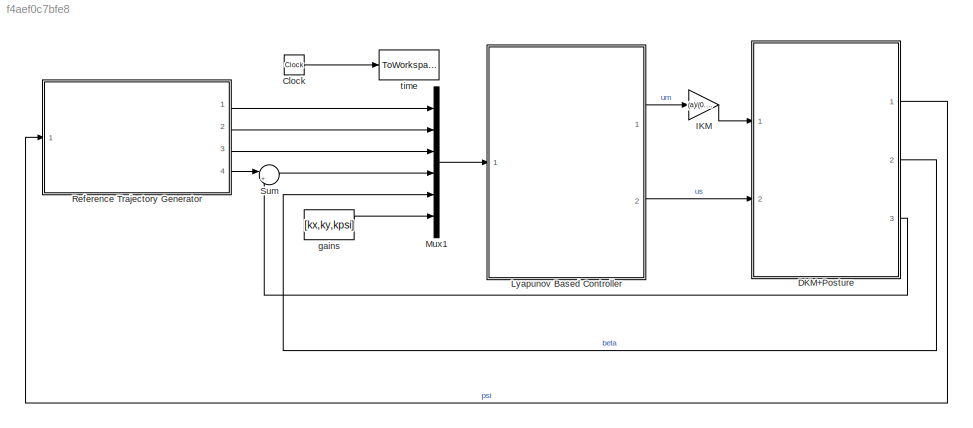
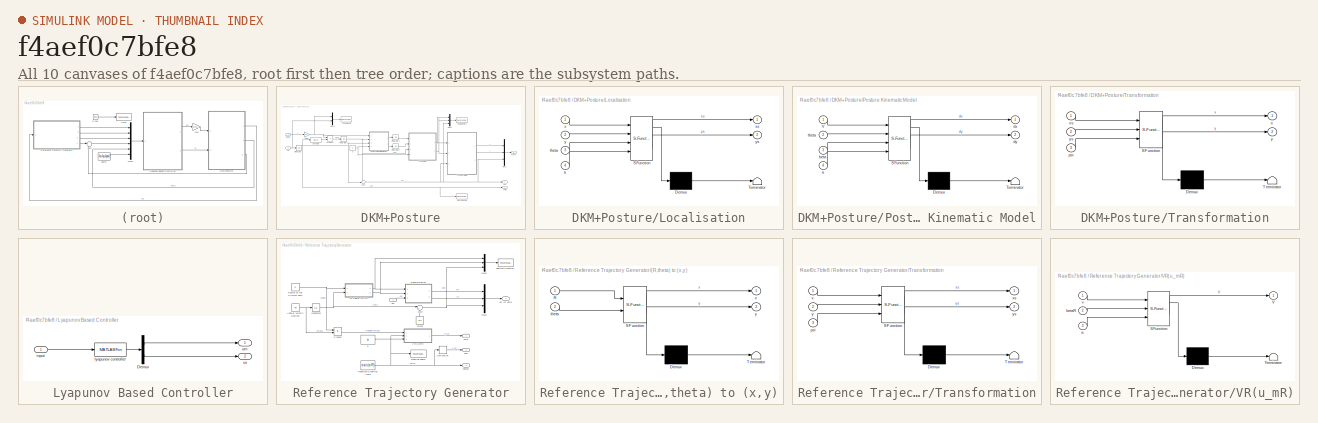
[diagram: thumbnail index - all 10 canvases of the model, root first then tree order]
MODEL slx_f4aef0c7bfe8
KIND model
CONFIG AbsTol = auto
CONFIG FixedStep = 0.001
CONFIG MaxStep = auto
CONFIG MinStep = auto
CONFIG RelTol = 1e-3
CONFIG SampleTimeConstraint = Unconstrained
CONFIG Solver = ode4
CONFIG SolverMode = Auto
CONFIG SolverName = ode4
CONFIG StartTime = 0.0
CONFIG StopTime = 15
BLOCK [Clock] Clock
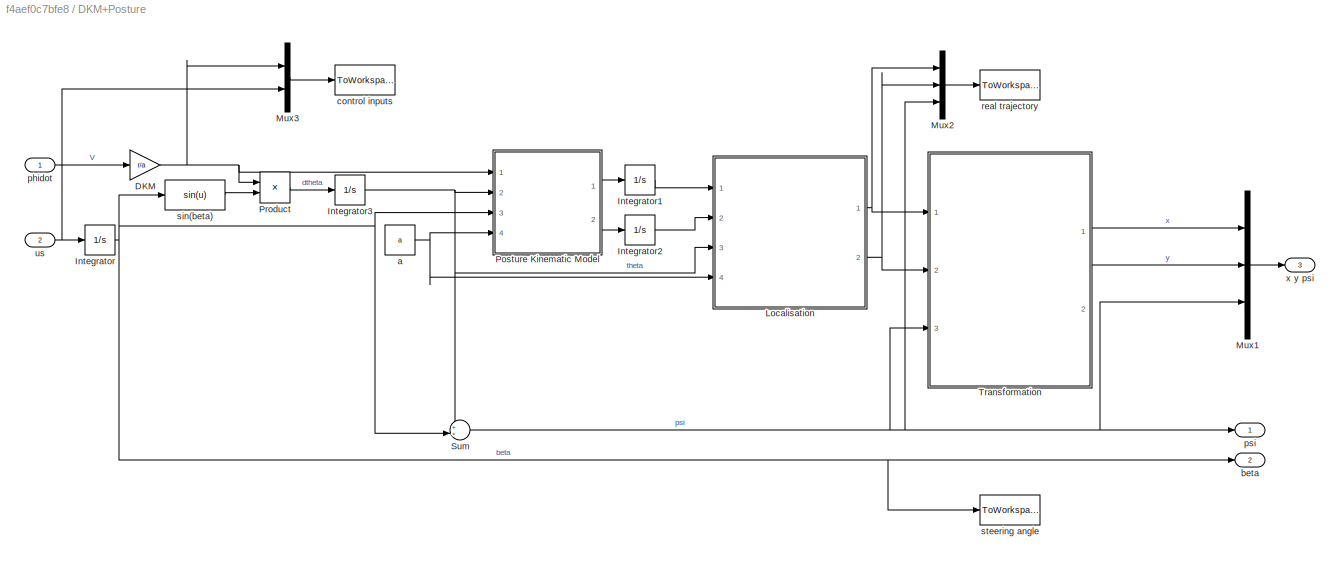
BLOCK [SubSystem] DKM+Posture
  Ports = [2, 3]
  RequestExecContextInheritance = off
BLOCK [Gain] DKM+Posture/DKM
  Gain = r/a
  OutDataTypeStr = Inherit: Inherit via internal rule
  ParamDataTypeStr = Inherit: Inherit via internal rule
  SaturateOnIntegerOverflow = off
BLOCK [Integrator] DKM+Posture/Integrator
  Ports = [1, 1]
BLOCK [Integrator] DKM+Posture/Integrator1
  InitialCondition = x0
  Ports = [1, 1]
BLOCK [Integrator] DKM+Posture/Integrator2
  InitialCondition = y0
  Ports = [1, 1]
BLOCK [Integrator] DKM+Posture/Integrator3
  InitialCondition = theta0
  Ports = [1, 1]
BLOCK [SubSystem] DKM+Posture/Localisation
  ErrorFcn = Stateflow.Translate.translate
  PermitHierarchicalResolution = ExplicitOnly
  Ports = [4, 2]
  RequestExecContextInheritance = off
  SFBlockType = MATLAB Function
  TreatAsAtomicUnit = on
BLOCK [Demux] DKM+Posture/Localisation/ Demux 
  Outputs = 1
  Ports = [1, 1]
BLOCK [S-Function] DKM+Posture/Localisation/ SFunction 
  EnableBusSupport = on
  FunctionName = sf_sfun
  PortCounts = [4 3]
  Ports = [4, 3]
  Tag = Stateflow S-Function lyapunov11 5
BLOCK [Terminator] DKM+Posture/Localisation/ Terminator 
BLOCK [Inport] DKM+Posture/Localisation/a
  IconDisplay = Port number
  Port = 4
BLOCK [Inport] DKM+Posture/Localisation/theta
  IconDisplay = Port number
  Port = 3
BLOCK [Inport] DKM+Posture/Localisation/x
  IconDisplay = Port number
BLOCK [Outport] DKM+Posture/Localisation/xs
  IconDisplay = Port number
BLOCK [Inport] DKM+Posture/Localisation/y
  IconDisplay = Port number
  Port = 2
BLOCK [Outport] DKM+Posture/Localisation/ys
  IconDisplay = Port number
  Port = 2
BLOCK [Mux] DKM+Posture/Mux1
  DisplayOption = bar
  Inputs = 3
  Ports = [3, 1]
BLOCK [Mux] DKM+Posture/Mux2
  DisplayOption = bar
  Inputs = 3
  Ports = [3, 1]
BLOCK [Mux] DKM+Posture/Mux3
  DisplayOption = bar
  Inputs = 2
  Ports = [2, 1]
BLOCK [SubSystem] DKM+Posture/Posture Kinematic Model
  ErrorFcn = Stateflow.Translate.translate
  PermitHierarchicalResolution = ExplicitOnly
  Ports = [4, 2]
  RequestExecContextInheritance = off
  SFBlockType = MATLAB Function
  TreatAsAtomicUnit = on
BLOCK [Demux] DKM+Posture/Posture Kinematic Model/ Demux 
  Outputs = 1
  Ports = [1, 1]
BLOCK [S-Function] DKM+Posture/Posture Kinematic Model/ SFunction 
  EnableBusSupport = on
  FunctionName = sf_sfun
  PortCounts = [4 3]
  Ports = [4, 3]
  Tag = Stateflow S-Function lyapunov11 4
BLOCK [Terminator] DKM+Posture/Posture Kinematic Model/ Terminator 
BLOCK [Inport] DKM+Posture/Posture Kinematic Model/V
  IconDisplay = Port number
BLOCK [Inport] DKM+Posture/Posture Kinematic Model/a
  IconDisplay = Port number
  Port = 4
BLOCK [Inport] DKM+Posture/Posture Kinematic Model/beta
  IconDisplay = Port number
  Port = 3
BLOCK [Outport] DKM+Posture/Posture Kinematic Model/dx
  IconDisplay = Port number
BLOCK [Outport] DKM+Posture/Posture Kinematic Model/dy
  IconDisplay = Port number
  Port = 2
BLOCK [Inport] DKM+Posture/Posture Kinematic Model/theta
  IconDisplay = Port number
  Port = 2
BLOCK [Product] DKM+Posture/Product
  InputSameDT = off
  OutDataTypeStr = Inherit: Inherit via internal rule
  Ports = [2, 1]
  RndMeth = Floor
  SaturateOnIntegerOverflow = off
BLOCK [Sum] DKM+Posture/Sum
  IconShape = round
  InputSameDT = off
  Inputs = ++|
  OutDataTypeStr = Inherit: Inherit via internal rule
  Ports = [2, 1]
  SaturateOnIntegerOverflow = off
BLOCK [SubSystem] DKM+Posture/Transformation
  ErrorFcn = Stateflow.Translate.translate
  PermitHierarchicalResolution = ExplicitOnly
  Ports = [3, 2]
  RequestExecContextInheritance = off
  SFBlockType = MATLAB Function
  TreatAsAtomicUnit = on
BLOCK [Demux] DKM+Posture/Transformation/ Demux 
  Outputs = 1
  Ports = [1, 1]
BLOCK [S-Function] DKM+Posture/Transformation/ SFunction 
  EnableBusSupport = on
  FunctionName = sf_sfun
  PortCounts = [3 3]
  Ports = [3, 3]
  Tag = Stateflow S-Function lyapunov11 6
BLOCK [Terminator] DKM+Posture/Transformation/ Terminator 
BLOCK [Inport] DKM+Posture/Transformation/psi
  IconDisplay = Port number
  Port = 3
BLOCK [Outport] DKM+Posture/Transformation/x
  IconDisplay = Port number
BLOCK [Inport] DKM+Posture/Transformation/xs
  IconDisplay = Port number
BLOCK [Outport] DKM+Posture/Transformation/y
  IconDisplay = Port number
  Port = 2
BLOCK [Inport] DKM+Posture/Transformation/ys
  IconDisplay = Port number
  Port = 2
BLOCK [Constant] DKM+Posture/a
  Value = a
BLOCK [Outport] DKM+Posture/beta
  IconDisplay = Port number
  Port = 2
BLOCK [ToWorkspace] DKM+Posture/control inputs
  FixptAsFi = on
  MaxDataPoints = inf
  Ports = [1]
  SampleTime = -1
  Save2DSignal = 3-D array (concatenate along third dimension)
  VariableName = u
BLOCK [Inport] DKM+Posture/phidot
  IconDisplay = Port number
BLOCK [Outport] DKM+Posture/psi
  IconDisplay = Port number
BLOCK [ToWorkspace] DKM+Posture/real trajectory
  FixptAsFi = on
  MaxDataPoints = inf
  Ports = [1]
  SampleTime = -1
  Save2DSignal = 3-D array (concatenate along third dimension)
  VariableName = h
BLOCK [Fcn] DKM+Posture/sin(beta)
  Expr = sin(u)
BLOCK [ToWorkspace] DKM+Posture/steering angle
  FixptAsFi = on
  MaxDataPoints = inf
  Ports = [1]
  SampleTime = -1
  Save2DSignal = 3-D array (concatenate along third dimension)
  VariableName = beta
BLOCK [Inport] DKM+Posture/us
  IconDisplay = Port number
  Port = 2
BLOCK [Outport] DKM+Posture/x y psi
  IconDisplay = Port number
  Port = 3
BLOCK [Gain] IKM
  Gain = (a)/(0.9*r)
  OutDataTypeStr = Inherit: Inherit via internal rule
  ParamDataTypeStr = Inherit: Inherit via internal rule
  SaturateOnIntegerOverflow = off
BLOCK [SubSystem] Lyapunov Based Controller
  Ports = [1, 2]
  RequestExecContextInheritance = off
BLOCK [Demux] Lyapunov Based Controller/Demux
  DisplayOption = bar
  Outputs = 2
  Ports = [1, 2]
BLOCK [Inport] Lyapunov Based Controller/input
  IconDisplay = Port number
BLOCK [MATLABFcn] Lyapunov Based Controller/lyapunov controller
  MATLABFcn = lyapu(u)
  OutputDimensions = 2
  Ports = [1, 1]
BLOCK [Outport] Lyapunov Based Controller/um
  IconDisplay = Port number
BLOCK [Outport] Lyapunov Based Controller/us
  IconDisplay = Port number
  Port = 2
BLOCK [Mux] Mux1
  DisplayOption = bar
  Inputs = 6
  Ports = [6, 1]
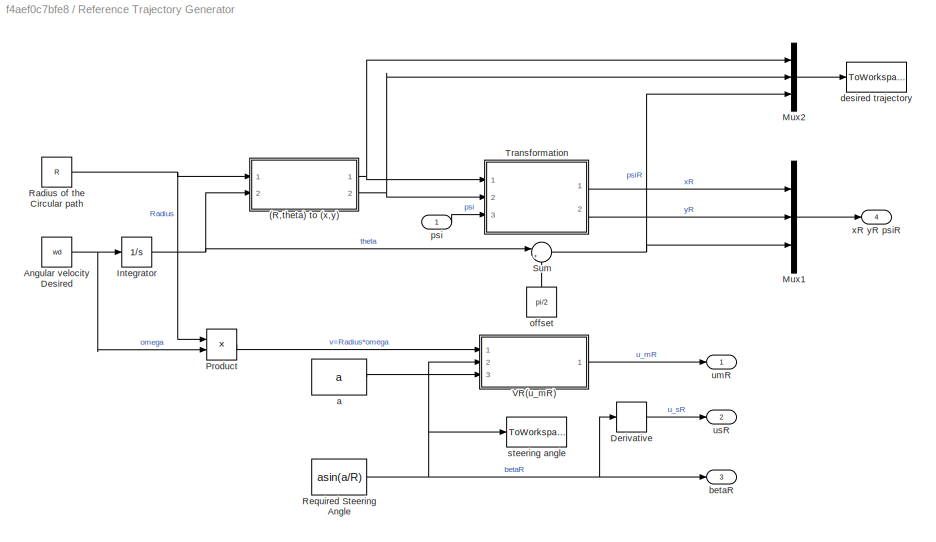
BLOCK [SubSystem] Reference Trajectory Generator
  Ports = [1, 4]
  RequestExecContextInheritance = off
BLOCK [SubSystem] Reference Trajectory Generator/(R,theta) to (x,y)
  ErrorFcn = Stateflow.Translate.translate
  PermitHierarchicalResolution = ExplicitOnly
  Ports = [2, 2]
  RequestExecContextInheritance = off
  SFBlockType = MATLAB Function
  TreatAsAtomicUnit = on
BLOCK [Demux] Reference Trajectory Generator/(R,theta) to (x,y)/ Demux 
  Outputs = 1
  Ports = [1, 1]
BLOCK [S-Function] Reference Trajectory Generator/(R,theta) to (x,y)/ SFunction 
  EnableBusSupport = on
  FunctionName = sf_sfun
  PortCounts = [2 3]
  Ports = [2, 3]
  Tag = Stateflow S-Function lyapunov11 1
BLOCK [Terminator] Reference Trajectory Generator/(R,theta) to (x,y)/ Terminator 
BLOCK [Inport] Reference Trajectory Generator/(R,theta) to (x,y)/R
  IconDisplay = Port number
BLOCK [Inport] Reference Trajectory Generator/(R,theta) to (x,y)/theta
  IconDisplay = Port number
  Port = 2
BLOCK [Outport] Reference Trajectory Generator/(R,theta) to (x,y)/x
  IconDisplay = Port number
BLOCK [Outport] Reference Trajectory Generator/(R,theta) to (x,y)/y
  IconDisplay = Port number
  Port = 2
BLOCK [Constant] Reference Trajectory Generator/Angular velocity Desired
  Value = wd
BLOCK [Derivative] Reference Trajectory Generator/Derivative
BLOCK [Integrator] Reference Trajectory Generator/Integrator
  Ports = [1, 1]
BLOCK [Mux] Reference Trajectory Generator/Mux1
  DisplayOption = bar
  Inputs = 3
  Ports = [3, 1]
BLOCK [Mux] Reference Trajectory Generator/Mux2
  DisplayOption = bar
  Inputs = 3
  Ports = [3, 1]
BLOCK [Product] Reference Trajectory Generator/Product
  InputSameDT = off
  OutDataTypeStr = Inherit: Inherit via internal rule
  Ports = [2, 1]
  RndMeth = Floor
  SaturateOnIntegerOverflow = off
BLOCK [Constant] Reference Trajectory Generator/Radius of the Circular path
  Value = R
BLOCK [Constant] Reference Trajectory Generator/Required Steering Angle
  Value = asin(a/R)
BLOCK [Sum] Reference Trajectory Generator/Sum
  IconShape = round
  InputSameDT = off
  Inputs = |++
  OutDataTypeStr = Inherit: Inherit via internal rule
  Ports = [2, 1]
  SaturateOnIntegerOverflow = off
BLOCK [SubSystem] Reference Trajectory Generator/Transformation
  ErrorFcn = Stateflow.Translate.translate
  PermitHierarchicalResolution = ExplicitOnly
  Ports = [3, 2]
  RequestExecContextInheritance = off
  SFBlockType = MATLAB Function
  TreatAsAtomicUnit = on
BLOCK [Demux] Reference Trajectory Generator/Transformation/ Demux 
  Outputs = 1
  Ports = [1, 1]
BLOCK [S-Function] Reference Trajectory Generator/Transformation/ SFunction 
  EnableBusSupport = on
  FunctionName = sf_sfun
  PortCounts = [3 3]
  Ports = [3, 3]
  Tag = Stateflow S-Function lyapunov11 2
BLOCK [Terminator] Reference Trajectory Generator/Transformation/ Terminator 
BLOCK [Inport] Reference Trajectory Generator/Transformation/psi
  IconDisplay = Port number
  Port = 3
BLOCK [Inport] Reference Trajectory Generator/Transformation/x
  IconDisplay = Port number
BLOCK [Outport] Reference Trajectory Generator/Transformation/xs
  IconDisplay = Port number
BLOCK [Inport] Reference Trajectory Generator/Transformation/y
  IconDisplay = Port number
  Port = 2
BLOCK [Outport] Reference Trajectory Generator/Transformation/ys
  IconDisplay = Port number
  Port = 2
BLOCK [SubSystem] Reference Trajectory Generator/VR(u_mR)
  ErrorFcn = Stateflow.Translate.translate
  PermitHierarchicalResolution = ExplicitOnly
  Ports = [3, 1]
  RequestExecContextInheritance = off
  SFBlockType = MATLAB Function
  TreatAsAtomicUnit = on
BLOCK [Demux] Reference Trajectory Generator/VR(u_mR)/ Demux 
  Outputs = 1
  Ports = [1, 1]
BLOCK [S-Function] Reference Trajectory Generator/VR(u_mR)/ SFunction 
  EnableBusSupport = on
  FunctionName = sf_sfun
  PortCounts = [3 2]
  Ports = [3, 2]
  Tag = Stateflow S-Function lyapunov11 3
BLOCK [Terminator] Reference Trajectory Generator/VR(u_mR)/ Terminator 
BLOCK [Outport] Reference Trajectory Generator/VR(u_mR)/V
  IconDisplay = Port number
BLOCK [Inport] Reference Trajectory Generator/VR(u_mR)/a
  IconDisplay = Port number
  Port = 3
BLOCK [Inport] Reference Trajectory Generator/VR(u_mR)/betaR
  IconDisplay = Port number
  Port = 2
BLOCK [Inport] Reference Trajectory Generator/VR(u_mR)/v
  IconDisplay = Port number
BLOCK [Constant] Reference Trajectory Generator/a
  Value = a
BLOCK [Outport] Reference Trajectory Generator/betaR
  IconDisplay = Port number
  Port = 3
BLOCK [ToWorkspace] Reference Trajectory Generator/desired trajectory
  FixptAsFi = on
  MaxDataPoints = inf
  Ports = [1]
  SampleTime = -1
  Save2DSignal = 3-D array (concatenate along third dimension)
  VariableName = hd
BLOCK [Constant] Reference Trajectory Generator/offset
  Value = pi/2
BLOCK [Inport] Reference Trajectory Generator/psi
  IconDisplay = Port number
BLOCK [ToWorkspace] Reference Trajectory Generator/steering angle
  FixptAsFi = on
  MaxDataPoints = inf
  Ports = [1]
  SampleTime = -1
  Save2DSignal = 3-D array (concatenate along third dimension)
  VariableName = betaR
BLOCK [Outport] Reference Trajectory Generator/umR
  IconDisplay = Port number
BLOCK [Outport] Reference Trajectory Generator/usR
  IconDisplay = Port number
  Port = 2
BLOCK [Outport] Reference Trajectory Generator/xR yR psiR
  IconDisplay = Port number
  Port = 4
BLOCK [Sum] Sum
  IconShape = round
  InputSameDT = off
  Inputs = |+-
  OutDataTypeStr = Inherit: Inherit via internal rule
  Ports = [2, 1]
  SaturateOnIntegerOverflow = off
BLOCK [Constant] gains
  Value = [kx,ky,kpsi]
BLOCK [ToWorkspace] time
  FixptAsFi = on
  MaxDataPoints = inf
  Ports = [1]
  SampleTime = -1
  Save2DSignal = 3-D array (concatenate along third dimension)
  VariableName = t
LINE Clock:1 -> time:1
NET DKM+Posture/DKM:1 -> DKM+Posture/Mux3:1, DKM+Posture/Posture Kinematic Model:1, DKM+Posture/Product:1
LINE DKM+Posture/Integrator1:1 -> DKM+Posture/Localisation:1
LINE DKM+Posture/Integrator2:1 -> DKM+Posture/Localisation:2
NET DKM+Posture/Integrator3:1 -> DKM+Posture/Localisation:3, DKM+Posture/Posture Kinematic Model:2, DKM+Posture/Sum:1
NET DKM+Posture/Integrator:1 -> DKM+Posture/Posture Kinematic Model:3, DKM+Posture/Sum:2, DKM+Posture/beta:1, DKM+Posture/sin(beta):1, DKM+Posture/steering angle:1
NET DKM+Posture/Localisation:1 -> DKM+Posture/Mux2:1, DKM+Posture/Transformation:1
NET DKM+Posture/Localisation:2 -> DKM+Posture/Mux2:2, DKM+Posture/Transformation:2
LINE DKM+Posture/Mux1:1 -> DKM+Posture/x y psi:1
LINE DKM+Posture/Mux2:1 -> DKM+Posture/real trajectory:1
LINE DKM+Posture/Mux3:1 -> DKM+Posture/control inputs:1
LINE DKM+Posture/Posture Kinematic Model:1 -> DKM+Posture/Integrator1:1
LINE DKM+Posture/Posture Kinematic Model:2 -> DKM+Posture/Integrator2:1
LINE DKM+Posture/Product:1 -> DKM+Posture/Integrator3:1
NET DKM+Posture/Sum:1 -> DKM+Posture/Mux1:3, DKM+Posture/Mux2:3, DKM+Posture/Transformation:3, DKM+Posture/psi:1
LINE DKM+Posture/Transformation:1 -> DKM+Posture/Mux1:1
LINE DKM+Posture/Transformation:2 -> DKM+Posture/Mux1:2
NET DKM+Posture/a:1 -> DKM+Posture/Localisation:4, DKM+Posture/Posture Kinematic Model:4
LINE DKM+Posture/phidot:1 -> DKM+Posture/DKM:1
LINE DKM+Posture/sin(beta):1 -> DKM+Posture/Product:2
NET DKM+Posture/us:1 -> DKM+Posture/Integrator:1, DKM+Posture/Mux3:2
LINE DKM+Posture:1 -> Reference Trajectory Generator:1
LINE DKM+Posture:2 -> Mux1:5
LINE DKM+Posture:3 -> Sum:2
LINE IKM:1 -> DKM+Posture:1
LINE Lyapunov Based Controller/Demux:1 -> Lyapunov Based Controller/um:1
LINE Lyapunov Based Controller/Demux:2 -> Lyapunov Based Controller/us:1
LINE Lyapunov Based Controller/input:1 -> Lyapunov Based Controller/lyapunov controller:1
LINE Lyapunov Based Controller/lyapunov controller:1 -> Lyapunov Based Controller/Demux:1
LINE Lyapunov Based Controller:1 -> IKM:1
LINE Lyapunov Based Controller:2 -> DKM+Posture:2
LINE Mux1:1 -> Lyapunov Based Controller:1
NET Reference Trajectory Generator/(R,theta) to (x,y):1 -> Reference Trajectory Generator/Mux2:1, Reference Trajectory Generator/Transformation:1
NET Reference Trajectory Generator/(R,theta) to (x,y):2 -> Reference Trajectory Generator/Mux2:2, Reference Trajectory Generator/Transformation:2
NET Reference Trajectory Generator/Angular velocity Desired:1 -> Reference Trajectory Generator/Integrator:1, Reference Trajectory Generator/Product:2
LINE Reference Trajectory Generator/Derivative:1 -> Reference Trajectory Generator/usR:1
NET Reference Trajectory Generator/Integrator:1 -> Reference Trajectory Generator/(R,theta) to (x,y):2, Reference Trajectory Generator/Sum:1
LINE Reference Trajectory Generator/Mux1:1 -> Reference Trajectory Generator/xR yR psiR:1
LINE Reference Trajectory Generator/Mux2:1 -> Reference Trajectory Generator/desired trajectory:1
LINE Reference Trajectory Generator/Product:1 -> Reference Trajectory Generator/VR(u_mR):1
NET Reference Trajectory Generator/Radius of the Circular path:1 -> Reference Trajectory Generator/(R,theta) to (x,y):1, Reference Trajectory Generator/Product:1
NET Reference Trajectory Generator/Required Steering Angle:1 -> Reference Trajectory Generator/Derivative:1, Reference Trajectory Generator/VR(u_mR):2, Reference Trajectory Generator/betaR:1, Reference Trajectory Generator/steering angle:1
NET Reference Trajectory Generator/Sum:1 -> Reference Trajectory Generator/Mux1:3, Reference Trajectory Generator/Mux2:3
LINE Reference Trajectory Generator/Transformation:1 -> Reference Trajectory Generator/Mux1:1
LINE Reference Trajectory Generator/Transformation:2 -> Reference Trajectory Generator/Mux1:2
LINE Reference Trajectory Generator/VR(u_mR):1 -> Reference Trajectory Generator/umR:1
LINE Reference Trajectory Generator/a:1 -> Reference Trajectory Generator/VR(u_mR):3
LINE Reference Trajectory Generator/offset:1 -> Reference Trajectory Generator/Sum:2
LINE Reference Trajectory Generator/psi:1 -> Reference Trajectory Generator/Transformation:3
LINE Reference Trajectory Generator:1 -> Mux1:1
LINE Reference Trajectory Generator:2 -> Mux1:2
LINE Reference Trajectory Generator:3 -> Mux1:3
LINE Reference Trajectory Generator:4 -> Sum:1
LINE Sum:1 -> Mux1:4
LINE gains:1 -> Mux1:6
note: NET lines group one-source signal fan-out (src -> all destinations, sorted); 1:1 wires keep LINE
CHART Reference Trajectory 
Generator/(R,theta) to (x,y) states=1 transitions=1
  STATE_LABEL 'eML_blk_kernel()'
  STATE_LABEL 'SCRIPT:\nfunction [x,y]= fcn(R,theta)\n%#codegen\nx=R*cos(theta);\ny=R*sin(theta);\n'
CHART Reference Trajectory 
Generator/Transformation states=1 transitions=1
  STATE_LABEL 'eML_blk_kernel()'
  STATE_LABEL 'SCRIPT:\nfunction [xs,ys]= fcn(x,y,psi)\n%#codegen\nxs=x*cos(psi)+y*sin(psi);\nys=-x*sin(psi)+y*cos(psi);\n'
CHART Reference Trajectory 
Generator/VR(u_mR) states=1 transitions=1
  STATE_LABEL 'eML_blk_kernel()'
  STATE_LABEL 'SCRIPT:\nfunction V = fcn(v,betaR,a)\n%#codegen\nV=v/(a*cos(betaR));\n\n'
CHART DKM+Posture/Posture Kinematic Model states=1 transitions=1
  STATE_LABEL 'eML_blk_kernel()'
  STATE_LABEL 'SCRIPT:\nfunction [dx,dy] = fcn(V,theta,beta,a)\n%#codegen\n\ndx=a*V*cos(theta)*cos(beta);\ndy=a*V*sin(theta)*cos(beta);'
CHART DKM+Posture/Localisation states=1 transitions=1
  STATE_LABEL 'eML_blk_kernel()'
  STATE_LABEL 'SCRIPT:\nfunction [xs,ys] = fcn(x,y,theta,a)\n%#codegen\n\nxs=x+a*cos(theta);\nys=y+a*sin(theta);'
CHART DKM+Posture/Transformation states=1 transitions=1
  STATE_LABEL 'eML_blk_kernel()'
  STATE_LABEL 'SCRIPT:\nfunction [x,y]= fcn(xs,ys,psi)\n%#codegen\nx=xs*cos(psi)+ys*sin(psi);\ny=-xs*sin(psi)+ys*cos(psi);\n'
